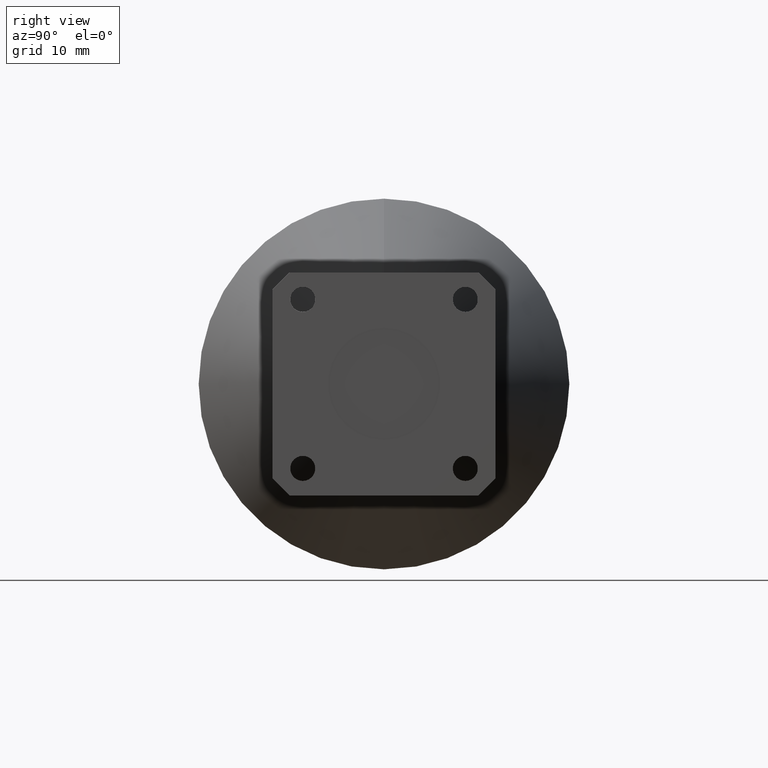
[diagram: clean part render]
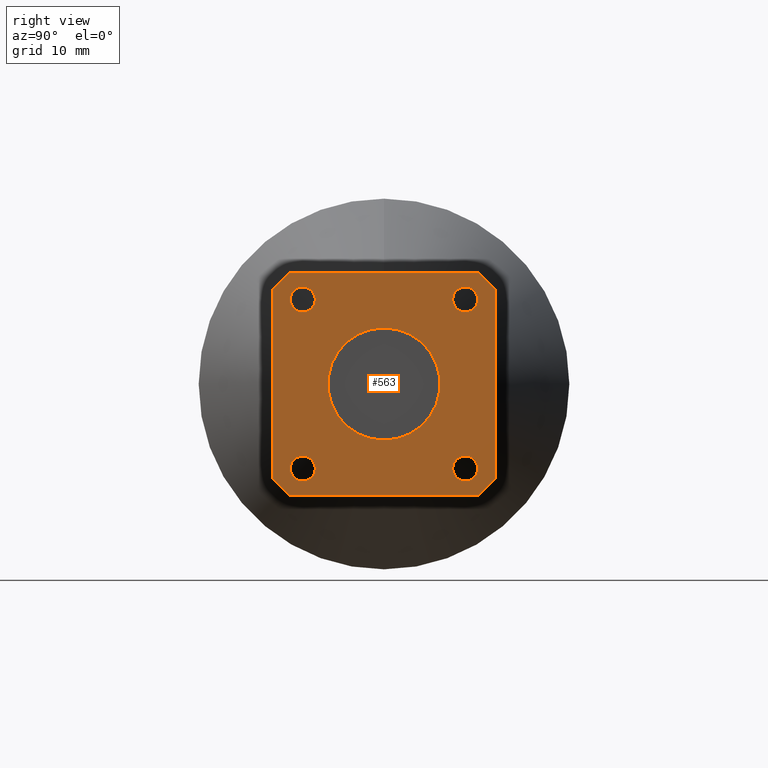
[diagram: same view with one face highlighted and labeled with its STEP entity id]
A machine part, right view. The second image highlights one B-rep face of the part: STEP entity #563.
In plain terms, the highlighted planar face has unit normal (-1, 0, -0).
Its self-contained STEP definition (entity closure, byte-faithful):
#5 = DIRECTION ( 'NONE',  ( 0.0000000000000000000, 0.0000000000000000000, -1.000000000000000000 ) ) ;
#9 = EDGE_CURVE ( 'NONE', #823, #893, #748, .T. ) ;
#25 = VERTEX_POINT ( 'NONE', #79 ) ;
#28 = DIRECTION ( 'NONE',  ( 0.0000000000000000000, 0.0000000000000000000, -1.000000000000000000 ) ) ;
#29 = VERTEX_POINT ( 'NONE', #887 ) ;
#32 = CIRCLE ( 'NONE', #675, 0.3300000000000000200 ) ;
#33 = DIRECTION ( 'NONE',  ( 1.000000000000000000, -0.0000000000000000000, -0.0000000000000000000 ) ) ;
#57 = EDGE_CURVE ( 'NONE', #295, #570, #892, .T. ) ;
#61 = EDGE_CURVE ( 'NONE', #316, #295, #783, .T. ) ;
#62 = CARTESIAN_POINT ( 'NONE',  ( 3.000000000000000400, 0.4779999999999999800, 0.5704999999999994500 ) ) ;
#63 = DIRECTION ( 'NONE',  ( 0.0000000000000000000, 0.0000000000000000000, -1.000000000000000000 ) ) ;
#64 = CARTESIAN_POINT ( 'NONE',  ( 3.000000000000000400, 0.6560000000000000300, 0.5559999999999994900 ) ) ;
#66 = VERTEX_POINT ( 'NONE', #891 ) ;
#79 = CARTESIAN_POINT ( 'NONE',  ( 3.000000000000000400, 4.041334437186265900E-017, -0.3300000000000000200 ) ) ;
#84 = EDGE_CURVE ( 'NONE', #256, #29, #195, .T. ) ;
#85 = ORIENTED_EDGE ( 'NONE', *, *, #588, .F. ) ;
#87 = FACE_OUTER_BOUND ( 'NONE', #458, .T. ) ;
#93 = CARTESIAN_POINT ( 'NONE',  ( 3.000000000000000400, 0.4779999999999999800, -0.5704999999999994500 ) ) ;
#102 = CARTESIAN_POINT ( 'NONE',  ( 3.000000000000000400, 0.9323680739955670900, 0.0000000000000000000 ) ) ;
#116 = DIRECTION ( 'NONE',  ( 0.0000000000000000000, -1.000000000000000000, -1.041100607341563500E-016 ) ) ;
#123 = AXIS2_PLACEMENT_3D ( 'NONE', #145, #509, #850 ) ;
#132 = CARTESIAN_POINT ( 'NONE',  ( 3.000000000000000400, 0.0000000000000000000, 0.3300000000000000200 ) ) ;
#136 = CARTESIAN_POINT ( 'NONE',  ( 3.000000000000000400, -0.4779999999999999800, 0.5704999999999994500 ) ) ;
#144 = VERTEX_POINT ( 'NONE', #132 ) ;
#145 = CARTESIAN_POINT ( 'NONE',  ( 3.000000000000000400, -0.4779999999999999800, 0.4970000000000000000 ) ) ;
#147 = CARTESIAN_POINT ( 'NONE',  ( 3.000000000000000400, -0.4779999999999999800, 0.4970000000000000000 ) ) ;
#153 = VERTEX_POINT ( 'NONE', #633 ) ;
#154 = VERTEX_POINT ( 'NONE', #202 ) ;
#158 = CIRCLE ( 'NONE', #899, 0.07349999999999949600 ) ;
#170 = CARTESIAN_POINT ( 'NONE',  ( 3.000000000000000400, -0.5560000000000006000, 0.6560000000000000300 ) ) ;
#184 = DIRECTION ( 'NONE',  ( 0.0000000000000000000, 0.7071067811865476800, -0.7071067811865472400 ) ) ;
#188 = CARTESIAN_POINT ( 'NONE',  ( 3.000000000000000400, 0.4779999999999999800, 0.4970000000000000000 ) ) ;
#191 = VECTOR ( 'NONE', #28, 39.37007874015748100 ) ;
#195 = CIRCLE ( 'NONE', #686, 0.07349999999999949600 ) ;
#199 = DIRECTION ( 'NONE',  ( 0.0000000000000000000, 0.0000000000000000000, 1.000000000000000000 ) ) ;
#202 = CARTESIAN_POINT ( 'NONE',  ( 3.000000000000000400, -0.5560000000000003800, 0.6560000000000000300 ) ) ;
#203 = CARTESIAN_POINT ( 'NONE',  ( 3.000000000000000400, 0.4779999999999999800, 0.4970000000000000000 ) ) ;
#205 = VECTOR ( 'NONE', #184, 39.37007874015748900 ) ;
#209 = DIRECTION ( 'NONE',  ( 0.0000000000000000000, -0.7071067811865476800, 0.7071067811865472400 ) ) ;
#214 = DIRECTION ( 'NONE',  ( 0.0000000000000000000, 0.0000000000000000000, 1.000000000000000000 ) ) ;
#224 = CARTESIAN_POINT ( 'NONE',  ( 3.000000000000000400, 0.4779999999999999800, -0.4970000000000000000 ) ) ;
#228 = CARTESIAN_POINT ( 'NONE',  ( 3.000000000000000400, -0.4779999999999999800, -0.5704999999999997900 ) ) ;
#230 = ORIENTED_EDGE ( 'NONE', *, *, #57, .T. ) ;
#232 = FACE_BOUND ( 'NONE', #314, .T. ) ;
#239 = EDGE_CURVE ( 'NONE', #29, #256, #440, .T. ) ;
#249 = ORIENTED_EDGE ( 'NONE', *, *, #830, .T. ) ;
#252 = FACE_BOUND ( 'NONE', #634, .T. ) ;
#256 = VERTEX_POINT ( 'NONE', #62 ) ;
#263 = LINE ( 'NONE', #555, #789 ) ;
#264 = CARTESIAN_POINT ( 'NONE',  ( 3.000000000000000400, 0.0000000000000000000, 0.0000000000000000000 ) ) ;
#266 = EDGE_CURVE ( 'NONE', #25, #144, #508, .T. ) ;
#269 = ORIENTED_EDGE ( 'NONE', *, *, #416, .F. ) ;
#278 = EDGE_CURVE ( 'NONE', #605, #721, #404, .T. ) ;
#288 = DIRECTION ( 'NONE',  ( 0.0000000000000000000, 0.0000000000000000000, -1.000000000000000000 ) ) ;
#294 = ORIENTED_EDGE ( 'NONE', *, *, #656, .T. ) ;
#295 = VERTEX_POINT ( 'NONE', #709 ) ;
#296 = DIRECTION ( 'NONE',  ( 1.000000000000000000, -0.0000000000000000000, -0.0000000000000000000 ) ) ;
#305 = VERTEX_POINT ( 'NONE', #64 ) ;
#306 = EDGE_CURVE ( 'NONE', #305, #153, #696, .T. ) ;
#307 = VERTEX_POINT ( 'NONE', #841 ) ;
#314 = EDGE_LOOP ( 'NONE', ( #593, #740 ) ) ;
#316 = VERTEX_POINT ( 'NONE', #577 ) ;
#317 = ORIENTED_EDGE ( 'NONE', *, *, #733, .F. ) ;
#326 = EDGE_CURVE ( 'NONE', #893, #823, #910, .T. ) ;
#343 = DIRECTION ( 'NONE',  ( 0.0000000000000000000, -1.000000000000000000, -1.041100607341563500E-016 ) ) ;
#362 = CARTESIAN_POINT ( 'NONE',  ( 3.000000000000000400, 0.4779999999999999800, -0.4970000000000000000 ) ) ;
#374 = ORIENTED_EDGE ( 'NONE', *, *, #326, .F. ) ;
#375 = LINE ( 'NONE', #401, #562 ) ;
#387 = DIRECTION ( 'NONE',  ( -0.0000000000000000000, 0.0000000000000000000, 1.000000000000000000 ) ) ;
#393 = ORIENTED_EDGE ( 'NONE', *, *, #306, .T. ) ;
#400 = FACE_BOUND ( 'NONE', #831, .T. ) ;
#401 = CARTESIAN_POINT ( 'NONE',  ( 3.000000000000000400, 6.829619984160658000E-017, -0.6560000000000000300 ) ) ;
#404 = CIRCLE ( 'NONE', #735, 0.07349999999999949600 ) ;
#411 = AXIS2_PLACEMENT_3D ( 'NONE', #506, #567, #916 ) ;
#416 = EDGE_CURVE ( 'NONE', #510, #759, #158, .T. ) ;
#420 = EDGE_LOOP ( 'NONE', ( #753, #317 ) ) ;
#421 = CARTESIAN_POINT ( 'NONE',  ( 3.000000000000000400, 0.6560000000000000300, 0.5559999999999994900 ) ) ;
#431 = ORIENTED_EDGE ( 'NONE', *, *, #448, .F. ) ;
#440 = CIRCLE ( 'NONE', #515, 0.07349999999999949600 ) ;
#448 = EDGE_CURVE ( 'NONE', #759, #510, #638, .T. ) ;
#458 = EDGE_LOOP ( 'NONE', ( #294, #774, #540, #230, #85, #249, #871, #393 ) ) ;
#495 = AXIS2_PLACEMENT_3D ( 'NONE', #590, #659, #648 ) ;
#506 = CARTESIAN_POINT ( 'NONE',  ( 3.000000000000000400, -0.4779999999999999800, -0.4970000000000003300 ) ) ;
#508 = CIRCLE ( 'NONE', #765, 0.3300000000000000200 ) ;
#509 = DIRECTION ( 'NONE',  ( 1.000000000000000000, -0.0000000000000000000, -0.0000000000000000000 ) ) ;
#510 = VERTEX_POINT ( 'NONE', #93 ) ;
#515 = AXIS2_PLACEMENT_3D ( 'NONE', #203, #706, #63 ) ;
#518 = LINE ( 'NONE', #811, #191 ) ;
#527 = PLANE ( 'NONE',  #643 ) ;
#536 = VECTOR ( 'NONE', #615, 39.37007874015748100 ) ;
#537 = DIRECTION ( 'NONE',  ( 0.0000000000000000000, 0.0000000000000000000, -1.000000000000000000 ) ) ;
#540 = ORIENTED_EDGE ( 'NONE', *, *, #61, .T. ) ;
#550 = CARTESIAN_POINT ( 'NONE',  ( 3.000000000000000400, -0.6560000000000000300, -0.5559999999999994900 ) ) ;
#555 = CARTESIAN_POINT ( 'NONE',  ( 3.000000000000000400, -6.829619984160658000E-017, 0.6560000000000000300 ) ) ;
#562 = VECTOR ( 'NONE', #116, 39.37007874015748100 ) ;
#563 = ADVANCED_FACE ( 'NONE', ( #232, #400, #252, #776, #87, #824 ), #527, .F. ) ;
#567 = DIRECTION ( 'NONE',  ( 1.000000000000000000, -0.0000000000000000000, -0.0000000000000000000 ) ) ;
#570 = VERTEX_POINT ( 'NONE', #878 ) ;
#577 = CARTESIAN_POINT ( 'NONE',  ( 3.000000000000000400, -0.6560000000000000300, 0.5559999999999993800 ) ) ;
#584 = ORIENTED_EDGE ( 'NONE', *, *, #641, .T. ) ;
#588 = EDGE_CURVE ( 'NONE', #307, #570, #375, .T. ) ;
#590 = CARTESIAN_POINT ( 'NONE',  ( 3.000000000000000400, -0.4779999999999999800, -0.4970000000000003300 ) ) ;
#592 = DIRECTION ( 'NONE',  ( 0.0000000000000000000, 0.0000000000000000000, -1.000000000000000000 ) ) ;
#593 = ORIENTED_EDGE ( 'NONE', *, *, #239, .F. ) ;
#594 = EDGE_LOOP ( 'NONE', ( #584, #906 ) ) ;
#605 = VERTEX_POINT ( 'NONE', #622 ) ;
#610 = LINE ( 'NONE', #170, #716 ) ;
#611 = DIRECTION ( 'NONE',  ( -1.000000000000000000, 0.0000000000000000000, -0.0000000000000000000 ) ) ;
#615 = DIRECTION ( 'NONE',  ( 0.0000000000000000000, 0.0000000000000000000, -1.000000000000000000 ) ) ;
#622 = CARTESIAN_POINT ( 'NONE',  ( 3.000000000000000400, -0.4779999999999999800, 0.4235000000000004900 ) ) ;
#631 = DIRECTION ( 'NONE',  ( -1.000000000000000000, -0.0000000000000000000, -0.0000000000000000000 ) ) ;
#633 = CARTESIAN_POINT ( 'NONE',  ( 3.000000000000000400, 0.5559999999999993800, 0.6560000000000000300 ) ) ;
#634 = EDGE_LOOP ( 'NONE', ( #838, #374 ) ) ;
#638 = CIRCLE ( 'NONE', #890, 0.07349999999999949600 ) ;
#640 = CARTESIAN_POINT ( 'NONE',  ( 3.000000000000000400, 0.0000000000000000000, 0.0000000000000000000 ) ) ;
#641 = EDGE_CURVE ( 'NONE', #144, #25, #32, .T. ) ;
#643 = AXIS2_PLACEMENT_3D ( 'NONE', #102, #611, #387 ) ;
#646 = DIRECTION ( 'NONE',  ( 1.000000000000000000, -0.0000000000000000000, -0.0000000000000000000 ) ) ;
#648 = DIRECTION ( 'NONE',  ( 0.0000000000000000000, 0.0000000000000000000, -1.000000000000000000 ) ) ;
#656 = EDGE_CURVE ( 'NONE', #153, #154, #263, .T. ) ;
#659 = DIRECTION ( 'NONE',  ( 1.000000000000000000, -0.0000000000000000000, -0.0000000000000000000 ) ) ;
#661 = CARTESIAN_POINT ( 'NONE',  ( 3.000000000000000400, 0.5560000000000006000, -0.6560000000000000300 ) ) ;
#663 = CARTESIAN_POINT ( 'NONE',  ( 3.000000000000000400, -0.4779999999999999800, -0.4235000000000008200 ) ) ;
#675 = AXIS2_PLACEMENT_3D ( 'NONE', #264, #631, #199 ) ;
#686 = AXIS2_PLACEMENT_3D ( 'NONE', #188, #33, #537 ) ;
#696 = LINE ( 'NONE', #421, #743 ) ;
#706 = DIRECTION ( 'NONE',  ( 1.000000000000000000, -0.0000000000000000000, -0.0000000000000000000 ) ) ;
#709 = CARTESIAN_POINT ( 'NONE',  ( 3.000000000000000400, -0.6560000000000000300, -0.5559999999999994900 ) ) ;
#716 = VECTOR ( 'NONE', #792, 39.37007874015748100 ) ;
#721 = VERTEX_POINT ( 'NONE', #136 ) ;
#723 = LINE ( 'NONE', #661, #731 ) ;
#731 = VECTOR ( 'NONE', #806, 39.37007874015748100 ) ;
#733 = EDGE_CURVE ( 'NONE', #721, #605, #923, .T. ) ;
#735 = AXIS2_PLACEMENT_3D ( 'NONE', #147, #646, #288 ) ;
#740 = ORIENTED_EDGE ( 'NONE', *, *, #84, .F. ) ;
#743 = VECTOR ( 'NONE', #209, 39.37007874015748900 ) ;
#748 = CIRCLE ( 'NONE', #495, 0.07349999999999949600 ) ;
#753 = ORIENTED_EDGE ( 'NONE', *, *, #278, .F. ) ;
#759 = VERTEX_POINT ( 'NONE', #768 ) ;
#765 = AXIS2_PLACEMENT_3D ( 'NONE', #640, #920, #214 ) ;
#768 = CARTESIAN_POINT ( 'NONE',  ( 3.000000000000000400, 0.4779999999999999800, -0.4235000000000004900 ) ) ;
#774 = ORIENTED_EDGE ( 'NONE', *, *, #860, .T. ) ;
#776 = FACE_BOUND ( 'NONE', #420, .T. ) ;
#783 = LINE ( 'NONE', #883, #536 ) ;
#789 = VECTOR ( 'NONE', #343, 39.37007874015748100 ) ;
#792 = DIRECTION ( 'NONE',  ( -0.0000000000000000000, -0.7071067811865434600, -0.7071067811865516800 ) ) ;
#806 = DIRECTION ( 'NONE',  ( -0.0000000000000000000, 0.7071067811865434600, 0.7071067811865516800 ) ) ;
#807 = DIRECTION ( 'NONE',  ( 1.000000000000000000, -0.0000000000000000000, -0.0000000000000000000 ) ) ;
#811 = CARTESIAN_POINT ( 'NONE',  ( 3.000000000000000400, 0.6560000000000000300, 0.0000000000000000000 ) ) ;
#823 = VERTEX_POINT ( 'NONE', #228 ) ;
#824 = FACE_BOUND ( 'NONE', #594, .T. ) ;
#830 = EDGE_CURVE ( 'NONE', #307, #66, #723, .T. ) ;
#831 = EDGE_LOOP ( 'NONE', ( #269, #431 ) ) ;
#838 = ORIENTED_EDGE ( 'NONE', *, *, #9, .F. ) ;
#841 = CARTESIAN_POINT ( 'NONE',  ( 3.000000000000000400, 0.5560000000000003800, -0.6560000000000000300 ) ) ;
#850 = DIRECTION ( 'NONE',  ( 0.0000000000000000000, 0.0000000000000000000, -1.000000000000000000 ) ) ;
#860 = EDGE_CURVE ( 'NONE', #154, #316, #610, .T. ) ;
#871 = ORIENTED_EDGE ( 'NONE', *, *, #921, .F. ) ;
#878 = CARTESIAN_POINT ( 'NONE',  ( 3.000000000000000400, -0.5559999999999993800, -0.6560000000000000300 ) ) ;
#883 = CARTESIAN_POINT ( 'NONE',  ( 3.000000000000000400, -0.6560000000000000300, 0.0000000000000000000 ) ) ;
#887 = CARTESIAN_POINT ( 'NONE',  ( 3.000000000000000400, 0.4779999999999999800, 0.4235000000000004900 ) ) ;
#890 = AXIS2_PLACEMENT_3D ( 'NONE', #224, #807, #5 ) ;
#891 = CARTESIAN_POINT ( 'NONE',  ( 3.000000000000000400, 0.6560000000000000300, -0.5559999999999993800 ) ) ;
#892 = LINE ( 'NONE', #550, #205 ) ;
#893 = VERTEX_POINT ( 'NONE', #663 ) ;
#899 = AXIS2_PLACEMENT_3D ( 'NONE', #362, #296, #592 ) ;
#906 = ORIENTED_EDGE ( 'NONE', *, *, #266, .T. ) ;
#910 = CIRCLE ( 'NONE', #411, 0.07349999999999949600 ) ;
#916 = DIRECTION ( 'NONE',  ( 0.0000000000000000000, 0.0000000000000000000, -1.000000000000000000 ) ) ;
#920 = DIRECTION ( 'NONE',  ( -1.000000000000000000, -0.0000000000000000000, -0.0000000000000000000 ) ) ;
#921 = EDGE_CURVE ( 'NONE', #305, #66, #518, .T. ) ;
#923 = CIRCLE ( 'NONE', #123, 0.07349999999999949600 ) ;